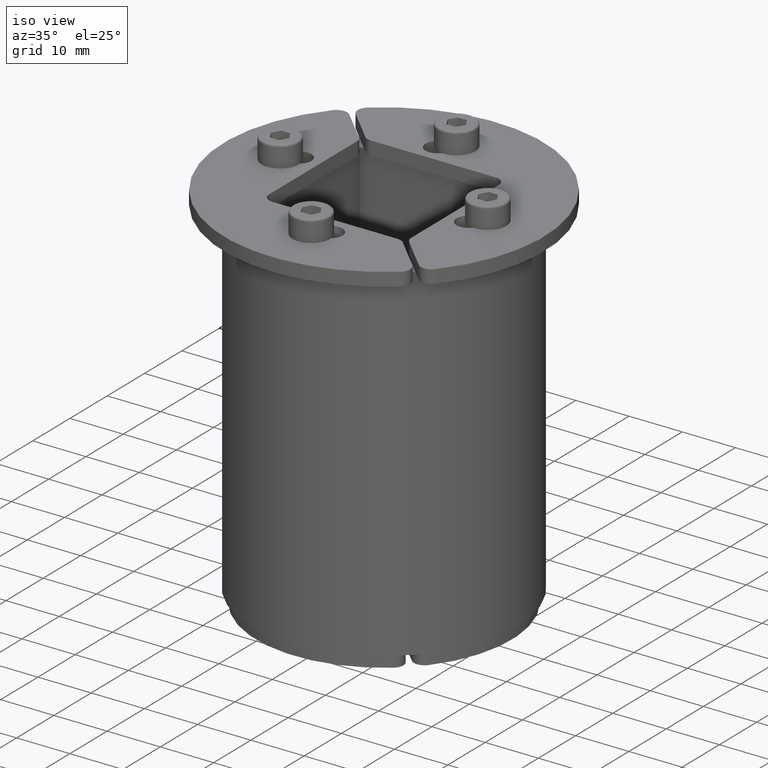
[diagram: clean part render]
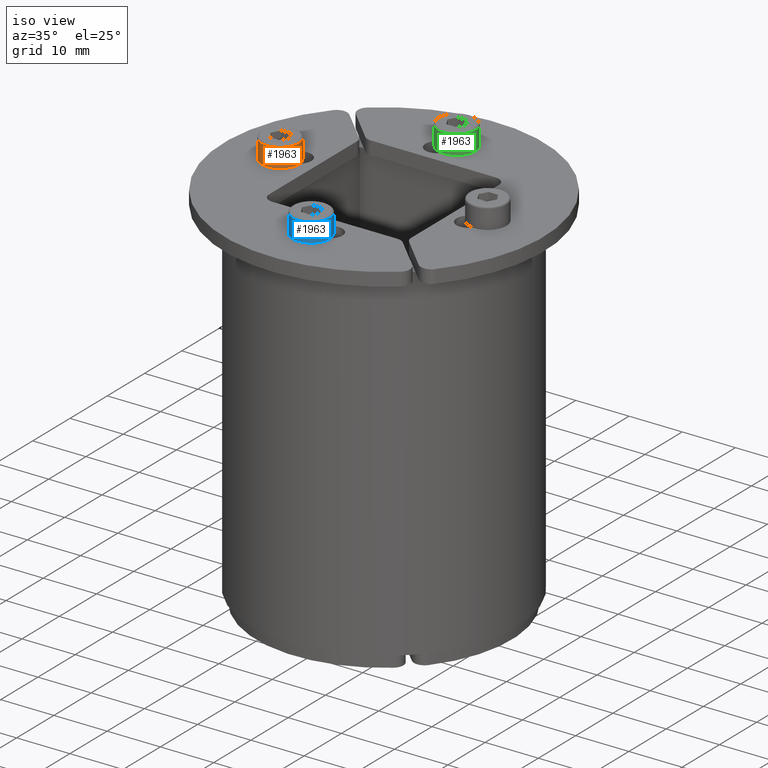
[diagram: same view with three faces highlighted in distinct colors, each labeled with its STEP entity id]
A machine part, iso view with three faces highlighted in distinct colors.
Their STEP definitions:

[orange] entity #1963 — the highlighted cylindrical surface (bore or boss wall) has radius 3.5 mm, axis along (0, 0, -1).
#1821=CARTESIAN_POINT('',(2.220446E-015,3.500000000000003,0.0));
#1822=VERTEX_POINT('',#1821);
#1823=CARTESIAN_POINT('',(0.0,-1.175341E-016,0.0));
#1824=DIRECTION('',(1.0,0.0,0.0));
#1825=DIRECTION('',(0.0,1.0,0.0));
#1826=AXIS2_PLACEMENT_3D('',#1823,#1824,#1825);
#1827=CIRCLE('',#1826,3.500000000000003);
#1828=EDGE_CURVE('',#1822,#1822,#1827,.T.);
#1881=CARTESIAN_POINT('',(-3.599999999999994,3.500000000000002,-8.572528E-016));
#1882=VERTEX_POINT('',#1881);
#1883=CARTESIAN_POINT('',(-3.599999999999994,-1.281122E-016,0.0));
#1884=DIRECTION('',(-1.0,0.0,0.0));
#1885=DIRECTION('',(0.0,-1.0,0.0));
#1886=AXIS2_PLACEMENT_3D('',#1883,#1884,#1885);
#1887=CIRCLE('',#1886,3.500000000000002);
#1888=EDGE_CURVE('',#1882,#1882,#1887,.T.);
#1952=CARTESIAN_POINT('',(-1.999999999999993,-1.234109E-016,0.0));
#1953=DIRECTION('',(1.0,2.938354E-018,0.0));
#1954=DIRECTION('',(0.0,1.0,0.0));
#1955=AXIS2_PLACEMENT_3D('',#1952,#1953,#1954);
#1956=CYLINDRICAL_SURFACE('',#1955,3.500000000000002);
#1957=ORIENTED_EDGE('',*,*,#1828,.F.);
#1958=EDGE_LOOP('',(#1957));
#1959=FACE_OUTER_BOUND('',#1958,.T.);
#1960=ORIENTED_EDGE('',*,*,#1888,.F.);
#1961=EDGE_LOOP('',(#1960));
#1962=FACE_BOUND('',#1961,.T.);
#1963=ADVANCED_FACE('',(#1959,#1962),#1956,.T.);

[blue] entity #1963 — the highlighted cylindrical surface (bore or boss wall) has radius 3.5 mm, axis along (0, 0, -1).
#1821=CARTESIAN_POINT('',(2.220446E-015,3.500000000000003,0.0));
#1822=VERTEX_POINT('',#1821);
#1823=CARTESIAN_POINT('',(0.0,-1.175341E-016,0.0));
#1824=DIRECTION('',(1.0,0.0,0.0));
#1825=DIRECTION('',(0.0,1.0,0.0));
#1826=AXIS2_PLACEMENT_3D('',#1823,#1824,#1825);
#1827=CIRCLE('',#1826,3.500000000000003);
#1828=EDGE_CURVE('',#1822,#1822,#1827,.T.);
#1881=CARTESIAN_POINT('',(-3.599999999999994,3.500000000000002,-8.572528E-016));
#1882=VERTEX_POINT('',#1881);
#1883=CARTESIAN_POINT('',(-3.599999999999994,-1.281122E-016,0.0));
#1884=DIRECTION('',(-1.0,0.0,0.0));
#1885=DIRECTION('',(0.0,-1.0,0.0));
#1886=AXIS2_PLACEMENT_3D('',#1883,#1884,#1885);
#1887=CIRCLE('',#1886,3.500000000000002);
#1888=EDGE_CURVE('',#1882,#1882,#1887,.T.);
#1952=CARTESIAN_POINT('',(-1.999999999999993,-1.234109E-016,0.0));
#1953=DIRECTION('',(1.0,2.938354E-018,0.0));
#1954=DIRECTION('',(0.0,1.0,0.0));
#1955=AXIS2_PLACEMENT_3D('',#1952,#1953,#1954);
#1956=CYLINDRICAL_SURFACE('',#1955,3.500000000000002);
#1957=ORIENTED_EDGE('',*,*,#1828,.F.);
#1958=EDGE_LOOP('',(#1957));
#1959=FACE_OUTER_BOUND('',#1958,.T.);
#1960=ORIENTED_EDGE('',*,*,#1888,.F.);
#1961=EDGE_LOOP('',(#1960));
#1962=FACE_BOUND('',#1961,.T.);
#1963=ADVANCED_FACE('',(#1959,#1962),#1956,.T.);

[green] entity #1963 — the highlighted cylindrical surface (bore or boss wall) has radius 3.5 mm, axis along (-0, 0, -1).
#1821=CARTESIAN_POINT('',(2.220446E-015,3.500000000000003,0.0));
#1822=VERTEX_POINT('',#1821);
#1823=CARTESIAN_POINT('',(0.0,-1.175341E-016,0.0));
#1824=DIRECTION('',(1.0,0.0,0.0));
#1825=DIRECTION('',(0.0,1.0,0.0));
#1826=AXIS2_PLACEMENT_3D('',#1823,#1824,#1825);
#1827=CIRCLE('',#1826,3.500000000000003);
#1828=EDGE_CURVE('',#1822,#1822,#1827,.T.);
#1881=CARTESIAN_POINT('',(-3.599999999999994,3.500000000000002,-8.572528E-016));
#1882=VERTEX_POINT('',#1881);
#1883=CARTESIAN_POINT('',(-3.599999999999994,-1.281122E-016,0.0));
#1884=DIRECTION('',(-1.0,0.0,0.0));
#1885=DIRECTION('',(0.0,-1.0,0.0));
#1886=AXIS2_PLACEMENT_3D('',#1883,#1884,#1885);
#1887=CIRCLE('',#1886,3.500000000000002);
#1888=EDGE_CURVE('',#1882,#1882,#1887,.T.);
#1952=CARTESIAN_POINT('',(-1.999999999999993,-1.234109E-016,0.0));
#1953=DIRECTION('',(1.0,2.938354E-018,0.0));
#1954=DIRECTION('',(0.0,1.0,0.0));
#1955=AXIS2_PLACEMENT_3D('',#1952,#1953,#1954);
#1956=CYLINDRICAL_SURFACE('',#1955,3.500000000000002);
#1957=ORIENTED_EDGE('',*,*,#1828,.F.);
#1958=EDGE_LOOP('',(#1957));
#1959=FACE_OUTER_BOUND('',#1958,.T.);
#1960=ORIENTED_EDGE('',*,*,#1888,.F.);
#1961=EDGE_LOOP('',(#1960));
#1962=FACE_BOUND('',#1961,.T.);
#1963=ADVANCED_FACE('',(#1959,#1962),#1956,.T.);